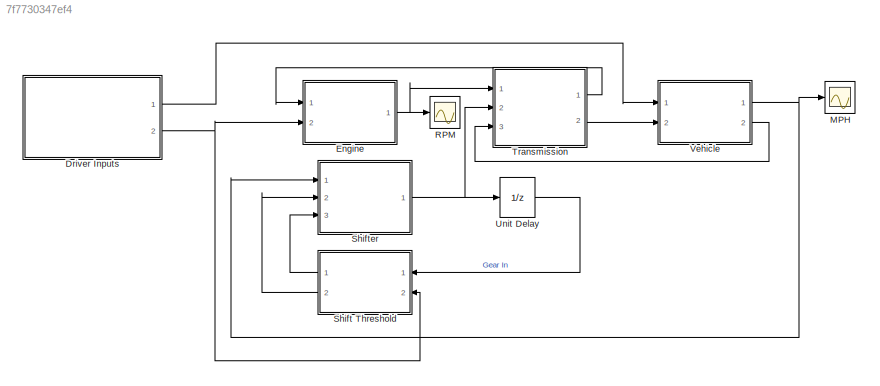
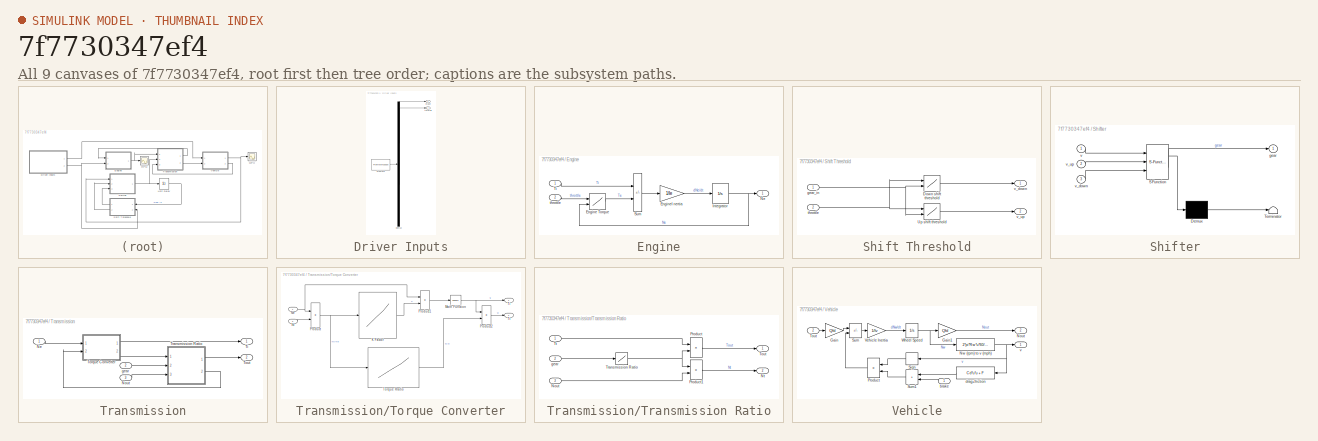
[diagram: thumbnail index - all 9 canvases of the model, root first then tree order]
MODEL slx_7f7730347ef4
KIND model
CONFIG AbsTol = auto
CONFIG EnableMultiTasking = on
CONFIG FixedStep = auto
CONFIG MaxStep = 0.05
CONFIG MinStep = auto
CONFIG RelTol = 1e-3
CONFIG SampleTimeConstraint = Unconstrained
CONFIG Solver = ode45
CONFIG SolverName = ode45
CONFIG StartTime = 0.0
CONFIG StopTime = 30.0
WORKSPACE source: mxarray member
WORKSPACE Cd = 0.02
WORKSPACE F = 40
WORKSPACE Ie = 0.0219914882836
WORKSPACE Iv = 12.0941478573
WORKSPACE K = [137.465208994 137.065019157 135.864449646 135.664354728 137.565256453 140.366585312 145.268910814 152.872517717 162.9773111 164.27792807 166.178829795 167.979684062 ... (21 elements, 21x1)]
WORKSPACE Ne = [800 1200 1600 2000 2400 2800 3200 3600 4000 4400 4800]
WORKSPACE Qfd = 3.23
WORKSPACE Qn = [0 0.1 0.2 0.3 0.4 0.5 0.6 0.7 0.8 0.81 0.82 0.83 ... (21 elements, 21x1)]
WORKSPACE Qt = [2.232 2.075 1.975 1.846 1.72 1.564 1.409 1.254 1.096 1.08 1.061 1.043 ... (21 elements, 21x1)]
WORKSPACE Rw = 1
WORKSPACE TH = [0 20 30 40 50 60 70 80 90 100]
WORKSPACE THdown = [0 5 40 50 90 100]
WORKSPACE THup = [0 25 35 50 90 100]
WORKSPACE Te = [-40 215 245 264 264 267 267 267 267 267 -44 117 ... (110 elements, 10x11)]
WORKSPACE Vdown = [0 0 0 0 0 0 5 5 5 5 30 30 ... (24 elements, 6x4)]
WORKSPACE Vup = [10 10 15 23 40 40 30 30 30 41 70 70 ... (24 elements, 6x4)]
BLOCK [SubSystem] Driver Inputs
  ClipboardFcn = sigbuilder_block('clipboard');
  CloseFcn = sigbuilder_block('close');
  ContinueFcn = sigbuilder_block('continue')
  CopyFcn = sigbuilder_block('copy');
  DeleteFcn = sigbuilder_block('delete');
  LoadFcn = sigbuilder_block('load');
  MaskHideContents = on
  ModelCloseFcn = sigbuilder_block('modelClose');
  NameChangeFcn = sigbuilder_block('namechange');
  OpenFcn = sigbuilder_block('open',[5.4 30 1141.2 522.6 ]);
  PauseFcn = sigbuilder_block('pause')
  Ports = [0, 2]
  PreSaveFcn = sigbuilder_block('preSave');
  RequestExecContextInheritance = off
  StartFcn = sigbuilder_block('start');
  StopFcn = sigbuilder_block('stop');
  Tag = STV Subsys
BLOCK [Demux] Driver Inputs/Demux
  DisplayOption = none
  Outputs = 2
  Ports = [1, 2]
  Tag = STV Demux
BLOCK [FromWorkspace] Driver Inputs/FromWs
  Tag = STV FromWs
  VariableName = tuvar
  ZeroCross = off
BLOCK [Outport] Driver Inputs/brake
  Tag = STV Outport
  VectorParamsAs1DForOutWhenUnconnected = off
BLOCK [Outport] Driver Inputs/throttle
  Port = 2
  Tag = STV Outport
  VectorParamsAs1DForOutWhenUnconnected = off
BLOCK [SubSystem] Engine
  Ports = [2, 1]
  RequestExecContextInheritance = off
BLOCK [Lookup2D] Engine/Engine Torque
  ColumnIndex = Ne
  InputSameDT = off
  RowIndex = TH
  Table = Te
BLOCK [Gain] Engine/EngineI nertia
  Gain = 1/Ie
  OutDataTypeStr = Inherit: Same as input
  ParamDataTypeStr = Inherit: Same as input
  SaturateOnIntegerOverflow = on
BLOCK [Integrator] Engine/Integrator
  AttributesFormatString = Ne0 = %<InitialCondition>\n%<LowerSaturationLimit> <= Ne <=  %<UpperSaturationLimit>\n\n
  InitialCondition = 1000
  LimitOutput = on
  LowerSaturationLimit = 600
  Ports = [1, 1]
  UpperSaturationLimit = 6000
  ZeroCross = off
BLOCK [Outport] Engine/Ne
  VectorParamsAs1DForOutWhenUnconnected = off
BLOCK [Sum] Engine/Sum
  IconShape = rectangular
  InputSameDT = on
  Inputs = -+
  OutDataTypeStr = Inherit: Same as first input
  Ports = [2, 1]
  SaturateOnIntegerOverflow = on
BLOCK [Inport] Engine/Ti
BLOCK [Inport] Engine/throttle
  Port = 2
BLOCK [Scope] MPH
  Floating = off
  NumInputPorts = 1
  Ports = [1]
  ScopeSpecificationString = Simulink.scopes.TimeScopeBlockCfg('CurrentConfiguration', extmgr.ConfigurationSet(extmgr.Configuration('Core','General UI',true),extmgr.Configuration('Core','Source UI',true),extmgr.Configuration('Sources','WiredSimulink',true,'DataLoggingSaveFormat','StructureWithTime','DataLoggingLimitDataPoints',true,'DataLoggingDecimation','1','DataLoggingDecimateData',true),extmgr.Configuration('Visuals','Tim...<+1843ch>
BLOCK [Scope] RPM
  Floating = off
  NumInputPorts = 1
  Ports = [1]
  ScopeSpecificationString = Simulink.scopes.TimeScopeBlockCfg('CurrentConfiguration', extmgr.ConfigurationSet(extmgr.Configuration('Core','General UI',true),extmgr.Configuration('Core','Source UI',true),extmgr.Configuration('Sources','WiredSimulink',true,'DataLoggingVariableName','ScopeData1','DataLoggingSaveFormat','StructureWithTime','DataLoggingLimitDataPoints',true,'DataLoggingDecimation','1','DataLoggingDecimateData',tr...<+1870ch>
BLOCK [SubSystem] Shift Threshold
  Ports = [2, 2]
  RequestExecContextInheritance = off
BLOCK [Lookup2D] Shift Threshold/Down shift threshold
  ColumnIndex = [1:4]
  RowIndex = THdown
  SaturateOnIntegerOverflow = off
  Table = Vdown
BLOCK [Lookup2D] Shift Threshold/Up shift threshold
  ColumnIndex = [1:4]
  RowIndex = THup
  SaturateOnIntegerOverflow = off
  Table = Vup
BLOCK [Inport] Shift Threshold/gear_in
BLOCK [Inport] Shift Threshold/throttle
  Port = 2
BLOCK [Outport] Shift Threshold/v_down
  VectorParamsAs1DForOutWhenUnconnected = off
BLOCK [Outport] Shift Threshold/v_up
  Port = 2
  VectorParamsAs1DForOutWhenUnconnected = off
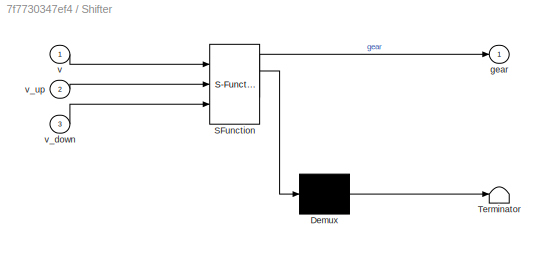
BLOCK [SubSystem] Shifter
  ErrorFcn = Stateflow.Translate.translate
  PermitHierarchicalResolution = ExplicitOnly
  Ports = [3, 1]
  RequestExecContextInheritance = off
  SFBlockType = Chart
  TreatAsAtomicUnit = on
BLOCK [Demux] Shifter/ Demux 
  Outputs = 1
  Ports = [1, 1]
BLOCK [S-Function] Shifter/ SFunction 
  EnableBusSupport = on
  FunctionName = sf_sfun
  PortCounts = [3 2]
  Ports = [3, 2]
  SFcnIsStateOwnerBlock = off
  SFunctionDeploymentMode = off
  Tag = Stateflow S-Function 3
BLOCK [Terminator] Shifter/ Terminator 
BLOCK [Outport] Shifter/gear
  VectorParamsAs1DForOutWhenUnconnected = off
BLOCK [Inport] Shifter/v
BLOCK [Inport] Shifter/v_down
  Port = 3
BLOCK [Inport] Shifter/v_up
  Port = 2
BLOCK [SubSystem] Transmission
  Ports = [3, 2]
  RequestExecContextInheritance = off
BLOCK [Inport] Transmission/Ne
BLOCK [Inport] Transmission/Nout
  Port = 3
BLOCK [Outport] Transmission/Ti
  InitialOutput = 0
  VectorParamsAs1DForOutWhenUnconnected = off
BLOCK [SubSystem] Transmission/Torque Converter
  Ports = [2, 2]
  RequestExecContextInheritance = off
BLOCK [Lookup] Transmission/Torque Converter/K Factor
  InputValues = Qn
  Table = K
BLOCK [Math] Transmission/Torque Converter/Math Function
  Operator = square
  Ports = [1, 1]
  SignedPower = on
BLOCK [Inport] Transmission/Torque Converter/Ne
BLOCK [Inport] Transmission/Torque Converter/Nt
  Port = 2
BLOCK [Product] Transmission/Torque Converter/Product
  Inputs = /*
  OutDataTypeStr = Inherit: Same as first input
  Ports = [2, 1]
  SaturateOnIntegerOverflow = on
BLOCK [Product] Transmission/Torque Converter/Product1
  Inputs = */
  OutDataTypeStr = Inherit: Same as first input
  Ports = [2, 1]
  SaturateOnIntegerOverflow = on
BLOCK [Product] Transmission/Torque Converter/Product2
  Inputs = **
  OutDataTypeStr = Inherit: Same as first input
  Ports = [2, 1]
  SaturateOnIntegerOverflow = on
BLOCK [Outport] Transmission/Torque Converter/Ti
  VectorParamsAs1DForOutWhenUnconnected = off
BLOCK [Lookup] Transmission/Torque Converter/Torque Rratio
  InputValues = Qn
  Table = Qt
BLOCK [Outport] Transmission/Torque Converter/Tt
  Port = 2
  VectorParamsAs1DForOutWhenUnconnected = off
BLOCK [Outport] Transmission/Tout
  InitialOutput = 0
  Port = 2
  VectorParamsAs1DForOutWhenUnconnected = off
BLOCK [SubSystem] Transmission/Transmission Ratio
  Ports = [3, 2]
  RequestExecContextInheritance = off
BLOCK [Inport] Transmission/Transmission Ratio/Nout
  Port = 3
BLOCK [Outport] Transmission/Transmission Ratio/Nt
  InitialOutput = 0
  Port = 2
  VectorParamsAs1DForOutWhenUnconnected = off
BLOCK [Product] Transmission/Transmission Ratio/Product
  InputSameDT = on
  OutDataTypeStr = Inherit: Same as first input
  Ports = [2, 1]
  SaturateOnIntegerOverflow = on
BLOCK [Product] Transmission/Transmission Ratio/Product1
  InputSameDT = on
  OutDataTypeStr = Inherit: Same as first input
  Ports = [2, 1]
  SaturateOnIntegerOverflow = on
BLOCK [Outport] Transmission/Transmission Ratio/Tout
  InitialOutput = 0
  VectorParamsAs1DForOutWhenUnconnected = off
BLOCK [Lookup] Transmission/Transmission Ratio/Transmission Ratio
  InputValues = [1, 2, 3, 4]
  Table = [2.393, 1.450, 1.000, 0.677]
BLOCK [Inport] Transmission/Transmission Ratio/Tt
BLOCK [Inport] Transmission/Transmission Ratio/gear
  Port = 2
BLOCK [Inport] Transmission/gear
  Port = 2
BLOCK [UnitDelay] Unit Delay
  AttributesFormatString = Ts = %<SampleTime>\n
  HasFrameUpgradeWarning = on
  InitialCondition = 1
  SampleTime = 0.05
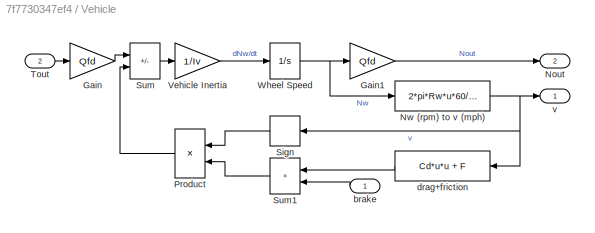
BLOCK [SubSystem] Vehicle
  Ports = [2, 2]
  RequestExecContextInheritance = off
BLOCK [Gain] Vehicle/Gain
  Gain = Qfd
  OutDataTypeStr = Inherit: Same as input
  ParamDataTypeStr = Inherit: Same as input
  SaturateOnIntegerOverflow = on
BLOCK [Gain] Vehicle/Gain1
  Gain = Qfd
  OutDataTypeStr = Inherit: Same as input
  ParamDataTypeStr = Inherit: Same as input
  SaturateOnIntegerOverflow = on
BLOCK [Outport] Vehicle/Nout
  Port = 2
  VectorParamsAs1DForOutWhenUnconnected = off
BLOCK [Fcn] Vehicle/Nw (rpm) to v (mph)
  Expr = 2*pi*Rw*u*60/5280
BLOCK [Product] Vehicle/Product
  OutDataTypeStr = Inherit: Same as first input
  Ports = [2, 1]
  SaturateOnIntegerOverflow = on
BLOCK [Signum] Vehicle/Sign
BLOCK [Sum] Vehicle/Sum
  IconShape = rectangular
  Inputs = |+-
  Ports = [2, 1]
  SaturateOnIntegerOverflow = on
BLOCK [Sum] Vehicle/Sum1
  IconShape = rectangular
  Ports = [2, 1]
  SaturateOnIntegerOverflow = on
BLOCK [Inport] Vehicle/Tout
  Port = 2
BLOCK [Gain] Vehicle/Vehicle Inertia
  Gain = 1/Iv
  OutDataTypeStr = Inherit: Same as input
  ParamDataTypeStr = Inherit: Same as input
  SaturateOnIntegerOverflow = on
BLOCK [Integrator] Vehicle/Wheel Speed
  AttributesFormatString = Nw0 = %<InitialCondition>\n
  Ports = [1, 1]
BLOCK [Inport] Vehicle/brake
BLOCK [Fcn] Vehicle/drag+friction
  Expr = Cd*u*u + F
BLOCK [Outport] Vehicle/v
  VectorParamsAs1DForOutWhenUnconnected = off
LINE Driver Inputs/Demux:1 -> Driver Inputs/brake:1
LINE Driver Inputs/Demux:2 -> Driver Inputs/throttle:1
LINE Driver Inputs/FromWs:1 -> Driver Inputs/Demux:1
LINE Driver Inputs:1 -> Vehicle:1
NET Driver Inputs:2 -> Engine:2, Shift Threshold:2
LINE Engine/Engine Torque:1 -> Engine/Sum:2
LINE Engine/EngineI nertia:1 -> Engine/Integrator:1
NET Engine/Integrator:1 -> Engine/Engine Torque:2, Engine/Ne:1
LINE Engine/Sum:1 -> Engine/EngineI nertia:1
LINE Engine/Ti:1 -> Engine/Sum:1
LINE Engine/throttle:1 -> Engine/Engine Torque:1
NET Engine:1 -> RPM:1, Transmission:1
LINE Shift Threshold/Down shift threshold:1 -> Shift Threshold/v_down:1
LINE Shift Threshold/Up shift threshold:1 -> Shift Threshold/v_up:1
NET Shift Threshold/gear_in:1 -> Shift Threshold/Down shift threshold:2, Shift Threshold/Up shift threshold:2
NET Shift Threshold/throttle:1 -> Shift Threshold/Down shift threshold:1, Shift Threshold/Up shift threshold:1
LINE Shift Threshold:1 -> Shifter:3
LINE Shift Threshold:2 -> Shifter:2
NET Shifter:1 -> Transmission:2, Unit Delay:1
LINE Transmission/Ne:1 -> Transmission/Torque Converter:1
LINE Transmission/Nout:1 -> Transmission/Transmission Ratio:3
LINE Transmission/Torque Converter/K Factor:1 -> Transmission/Torque Converter/Product1:2
NET Transmission/Torque Converter/Math Function:1 -> Transmission/Torque Converter/Product2:1, Transmission/Torque Converter/Ti:1
NET Transmission/Torque Converter/Ne:1 -> Transmission/Torque Converter/Product1:1, Transmission/Torque Converter/Product:1
LINE Transmission/Torque Converter/Nt:1 -> Transmission/Torque Converter/Product:2
LINE Transmission/Torque Converter/Product1:1 -> Transmission/Torque Converter/Math Function:1
LINE Transmission/Torque Converter/Product2:1 -> Transmission/Torque Converter/Tt:1
NET Transmission/Torque Converter/Product:1 -> Transmission/Torque Converter/K Factor:1, Transmission/Torque Converter/Torque Rratio:1
LINE Transmission/Torque Converter/Torque Rratio:1 -> Transmission/Torque Converter/Product2:2
LINE Transmission/Torque Converter:1 -> Transmission/Ti:1
LINE Transmission/Torque Converter:2 -> Transmission/Transmission Ratio:1
LINE Transmission/Transmission Ratio/Nout:1 -> Transmission/Transmission Ratio/Product1:2
LINE Transmission/Transmission Ratio/Product1:1 -> Transmission/Transmission Ratio/Nt:1
LINE Transmission/Transmission Ratio/Product:1 -> Transmission/Transmission Ratio/Tout:1
NET Transmission/Transmission Ratio/Transmission Ratio:1 -> Transmission/Transmission Ratio/Product1:1, Transmission/Transmission Ratio/Product:2
LINE Transmission/Transmission Ratio/Tt:1 -> Transmission/Transmission Ratio/Product:1
LINE Transmission/Transmission Ratio/gear:1 -> Transmission/Transmission Ratio/Transmission Ratio:1
LINE Transmission/Transmission Ratio:1 -> Transmission/Tout:1
LINE Transmission/Transmission Ratio:2 -> Transmission/Torque Converter:2
LINE Transmission/gear:1 -> Transmission/Transmission Ratio:2
LINE Transmission:1 -> Engine:1
LINE Transmission:2 -> Vehicle:2
LINE Unit Delay:1 -> Shift Threshold:1
LINE Vehicle/Gain1:1 -> Vehicle/Nout:1
LINE Vehicle/Gain:1 -> Vehicle/Sum:1
NET Vehicle/Nw (rpm) to v (mph):1 -> Vehicle/Sign:1, Vehicle/drag+friction:1, Vehicle/v:1
LINE Vehicle/Product:1 -> Vehicle/Sum:2
LINE Vehicle/Sign:1 -> Vehicle/Product:1
LINE Vehicle/Sum1:1 -> Vehicle/Product:2
LINE Vehicle/Sum:1 -> Vehicle/Vehicle Inertia:1
LINE Vehicle/Tout:1 -> Vehicle/Gain:1
LINE Vehicle/Vehicle Inertia:1 -> Vehicle/Wheel Speed:1
NET Vehicle/Wheel Speed:1 -> Vehicle/Gain1:1, Vehicle/Nw (rpm) to v (mph):1
LINE Vehicle/brake:1 -> Vehicle/Sum1:2
LINE Vehicle/drag+friction:1 -> Vehicle/Sum1:1
NET Vehicle:1 -> MPH:1, Shifter:1
LINE Vehicle:2 -> Transmission:3
note: NET lines group one-source signal fan-out (src -> all destinations, sorted); 1:1 wires keep LINE
CHART Shifter states=4 transitions=7
  STATE_LABEL 'gear4\nen: gear = 4;'
  STATE_LABEL 'gear1\nen: gear = 1;'
  STATE_LABEL 'gear2\nen: gear = 2;'
  STATE_LABEL 'gear3\nen: gear = 3;'
CHART  states=0 transitions=0
